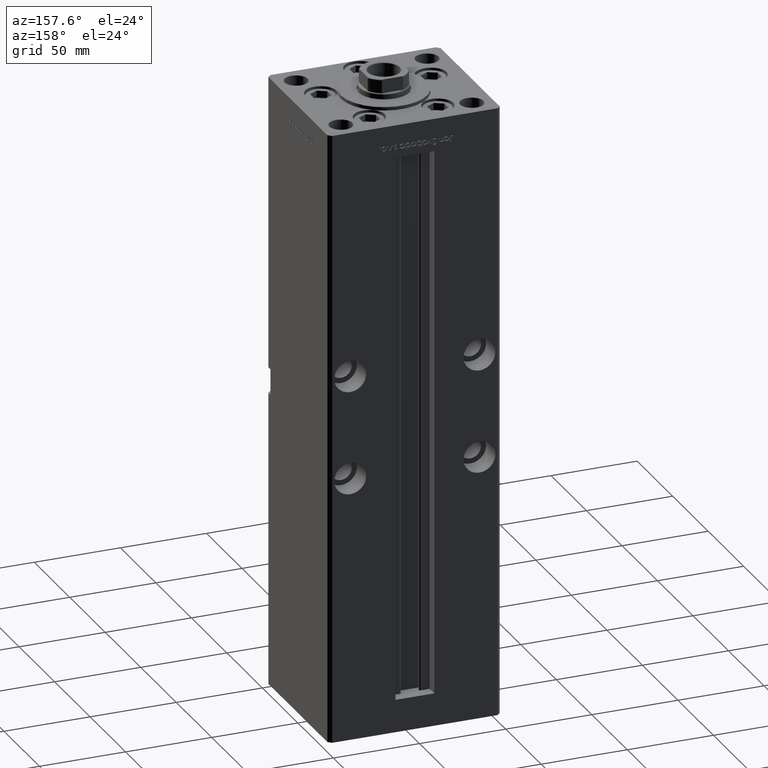
[diagram: clean part render]
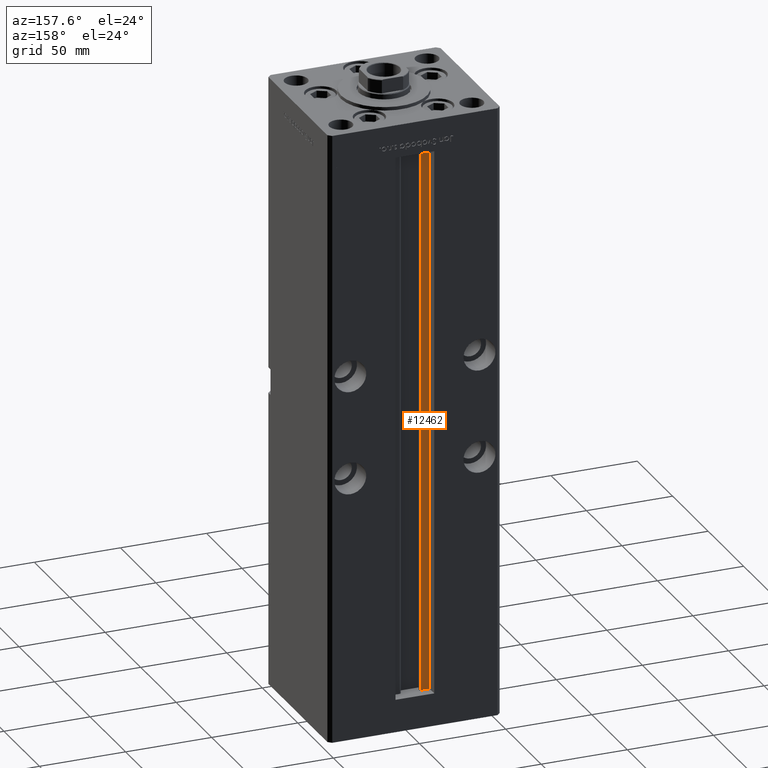
[diagram: same view with one face highlighted and labeled with its STEP entity id]
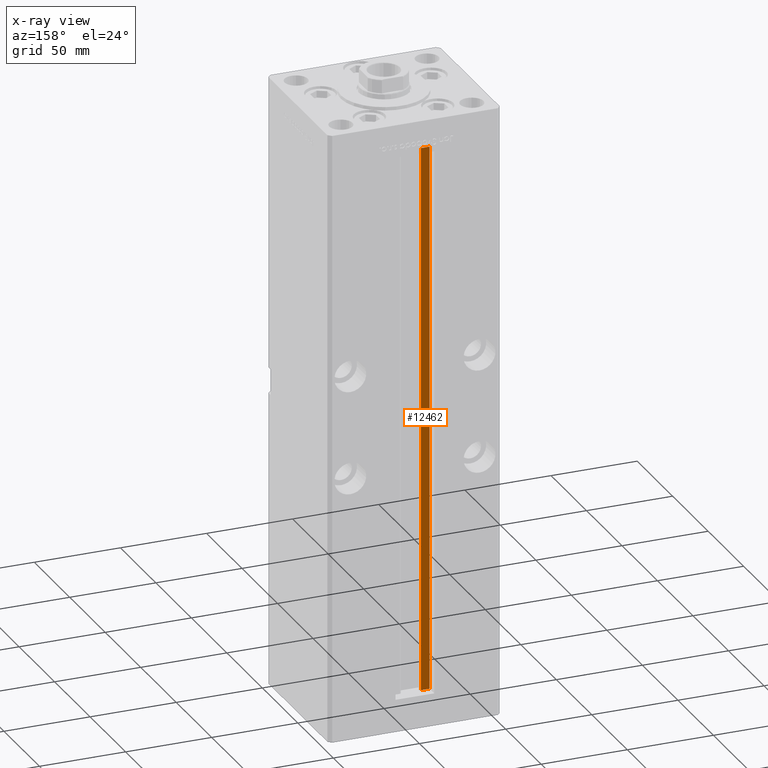
[diagram: x-ray of the same camera — body ghosted, the highlighted face saturated]
A machine part, auxiliary view. The second image highlights one B-rep face of the part: STEP entity #12462.
The next image is the same camera in x-ray: the body ghosted, the highlighted face saturated — about 0% of this face is hidden behind the body in this view.
In plain terms, the highlighted planar face has unit normal (0, -1, 0).
Its self-contained STEP definition (entity closure, byte-faithful):
#1727 = LINE ( 'NONE', #21652, #32214 ) ;
#4096 = VERTEX_POINT ( 'NONE', #38313 ) ;
#4238 = ORIENTED_EDGE ( 'NONE', *, *, #48543, .F. ) ;
#4803 = DIRECTION ( 'NONE',  ( 0.000000000000000000, 0.000000000000000000, -1.000000000000000000 ) ) ;
#4812 = CARTESIAN_POINT ( 'NONE',  ( -6.183333333333996151, 37.00000000000000000, 0.000000000000000000 ) ) ;
#5089 = LINE ( 'NONE', #4812, #8011 ) ;
#6035 = AXIS2_PLACEMENT_3D ( 'NONE', #29253, #22001, #4803 ) ;
#7111 = DIRECTION ( 'NONE',  ( -0.000000000000000000, -0.000000000000000000, 1.000000000000000000 ) ) ;
#7443 = VECTOR ( 'NONE', #21483, 1000.000000000000000 ) ;
#8011 = VECTOR ( 'NONE', #52922, 1000.000000000000000 ) ;
#8054 = CARTESIAN_POINT ( 'NONE',  ( -6.183333333333996151, 37.00000000000000000, 318.5000000000000000 ) ) ;
#9295 = VERTEX_POINT ( 'NONE', #30523 ) ;
#12462 = ADVANCED_FACE ( 'NONE', ( #25763 ), #38098, .F. ) ;
#13611 = VERTEX_POINT ( 'NONE', #18166 ) ;
#16298 = EDGE_CURVE ( 'NONE', #4096, #13611, #1727, .T. ) ;
#18166 = CARTESIAN_POINT ( 'NONE',  ( -11.24999999999999645, 37.00000000000000000, 318.5000000000000000 ) ) ;
#20976 = EDGE_CURVE ( 'NONE', #48583, #13611, #29787, .T. ) ;
#21483 = DIRECTION ( 'NONE',  ( -1.000000000000000000, 0.000000000000000000, 0.000000000000000000 ) ) ;
#21652 = CARTESIAN_POINT ( 'NONE',  ( -11.24999999999999645, 37.00000000000000000, 0.000000000000000000 ) ) ;
#22001 = DIRECTION ( 'NONE',  ( 0.000000000000000000, -1.000000000000000000, -0.000000000000000000 ) ) ;
#25763 = FACE_OUTER_BOUND ( 'NONE', #43184, .T. ) ;
#28039 = LINE ( 'NONE', #52234, #47177 ) ;
#28442 = ORIENTED_EDGE ( 'NONE', *, *, #16298, .T. ) ;
#29253 = CARTESIAN_POINT ( 'NONE',  ( -6.183333333333996151, 37.00000000000000000, 0.000000000000000000 ) ) ;
#29565 = ORIENTED_EDGE ( 'NONE', *, *, #36154, .F. ) ;
#29787 = LINE ( 'NONE', #49665, #7443 ) ;
#30523 = CARTESIAN_POINT ( 'NONE',  ( -6.183333333333996151, 37.00000000000000000, 0.000000000000000000 ) ) ;
#32214 = VECTOR ( 'NONE', #51422, 1000.000000000000000 ) ;
#36154 = EDGE_CURVE ( 'NONE', #9295, #48583, #28039, .T. ) ;
#38098 = PLANE ( 'NONE',  #6035 ) ;
#38313 = CARTESIAN_POINT ( 'NONE',  ( -11.24999999999999645, 37.00000000000000000, 0.000000000000000000 ) ) ;
#40188 = ORIENTED_EDGE ( 'NONE', *, *, #20976, .F. ) ;
#43184 = EDGE_LOOP ( 'NONE', ( #29565, #4238, #28442, #40188 ) ) ;
#47177 = VECTOR ( 'NONE', #7111, 1000.000000000000000 ) ;
#48543 = EDGE_CURVE ( 'NONE', #4096, #9295, #5089, .T. ) ;
#48583 = VERTEX_POINT ( 'NONE', #8054 ) ;
#49665 = CARTESIAN_POINT ( 'NONE',  ( 0.000000000000000000, 37.00000000000000000, 318.5000000000000000 ) ) ;
#51422 = DIRECTION ( 'NONE',  ( -0.000000000000000000, -0.000000000000000000, 1.000000000000000000 ) ) ;
#52234 = CARTESIAN_POINT ( 'NONE',  ( -6.183333333333996151, 37.00000000000000000, 0.000000000000000000 ) ) ;
#52922 = DIRECTION ( 'NONE',  ( 1.000000000000000000, -0.000000000000000000, -0.000000000000000000 ) ) ;